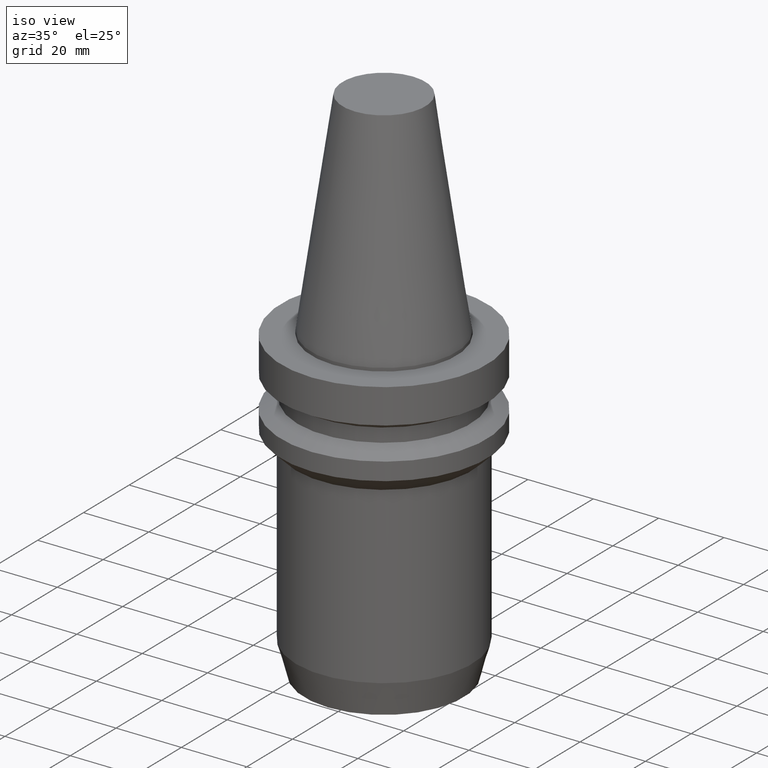
[diagram: clean part render]
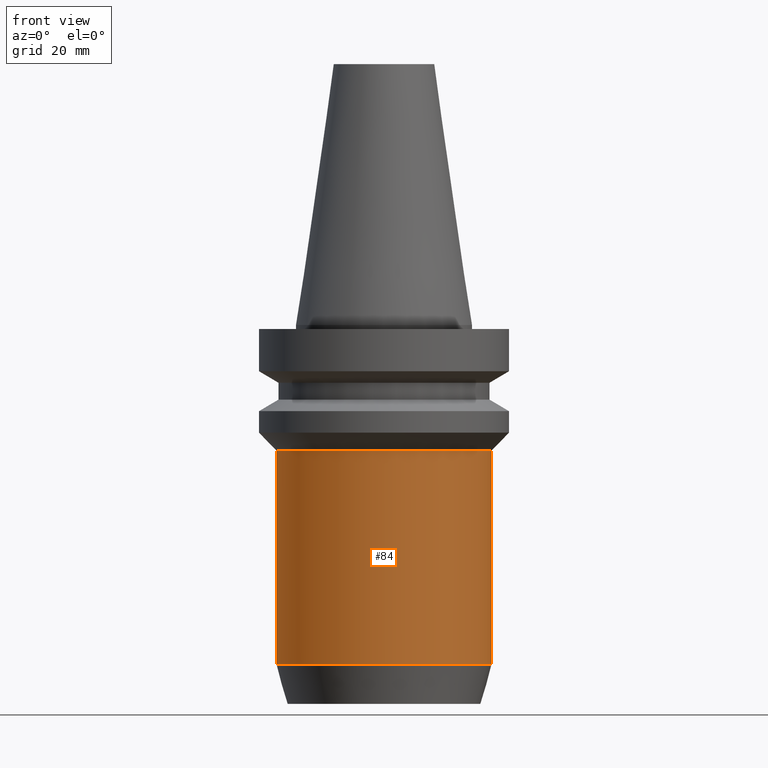
[diagram: tour spotlight — one face highlighted and labeled with its STEP entity id]
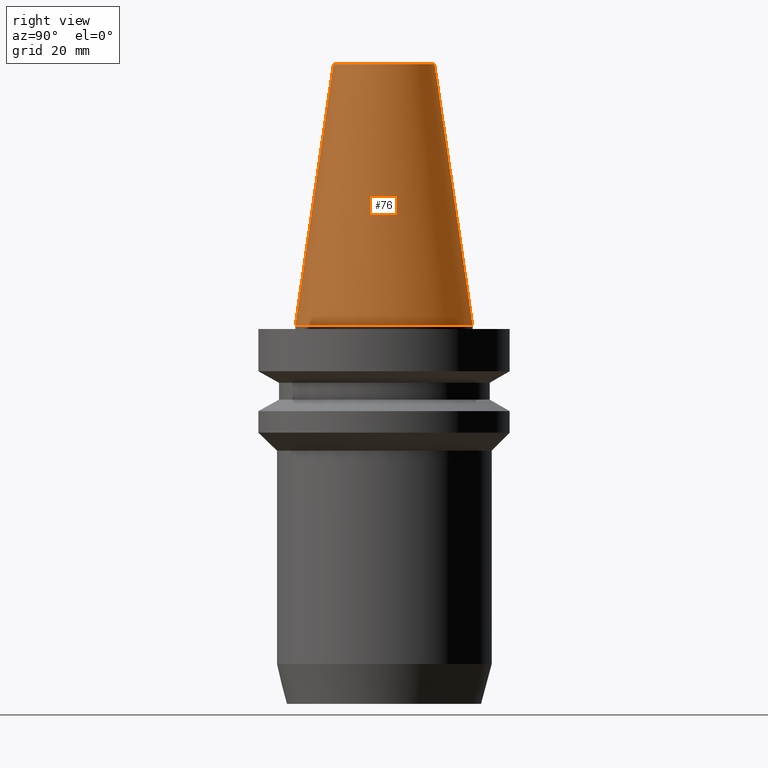
[diagram: tour spotlight — one face highlighted and labeled with its STEP entity id]
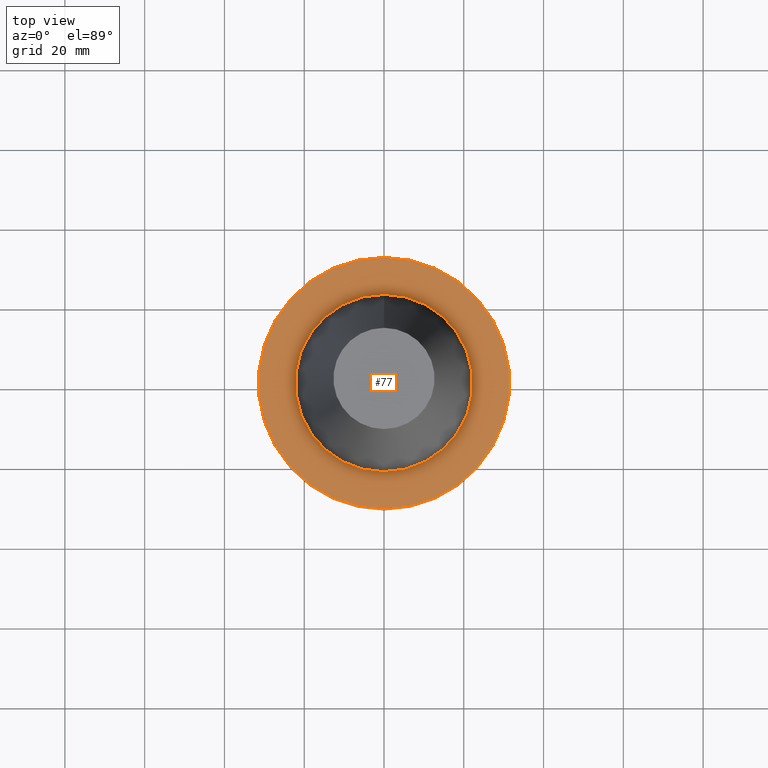
[diagram: tour spotlight — one face highlighted and labeled with its STEP entity id]
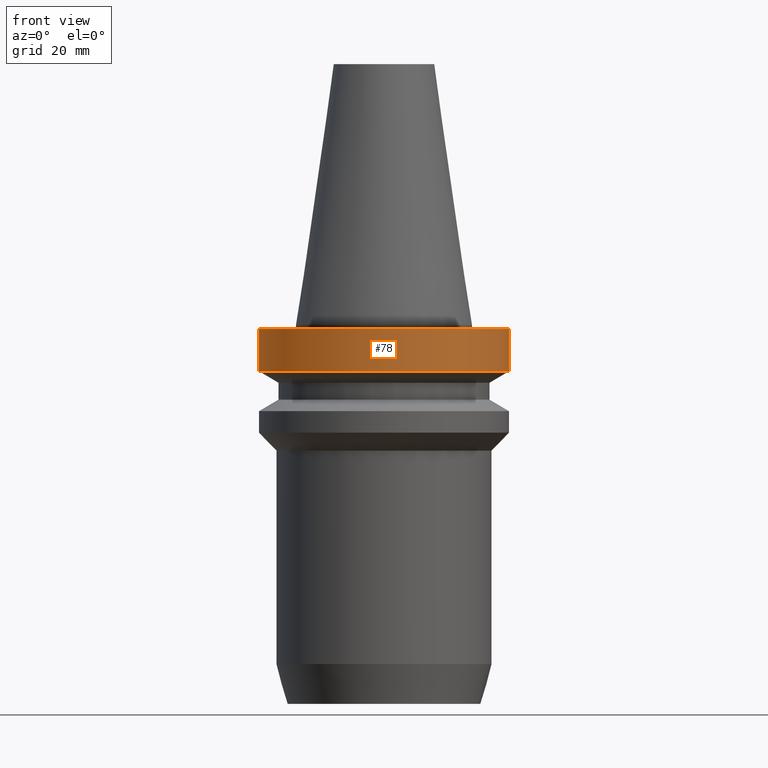
[diagram: tour spotlight — one face highlighted and labeled with its STEP entity id]
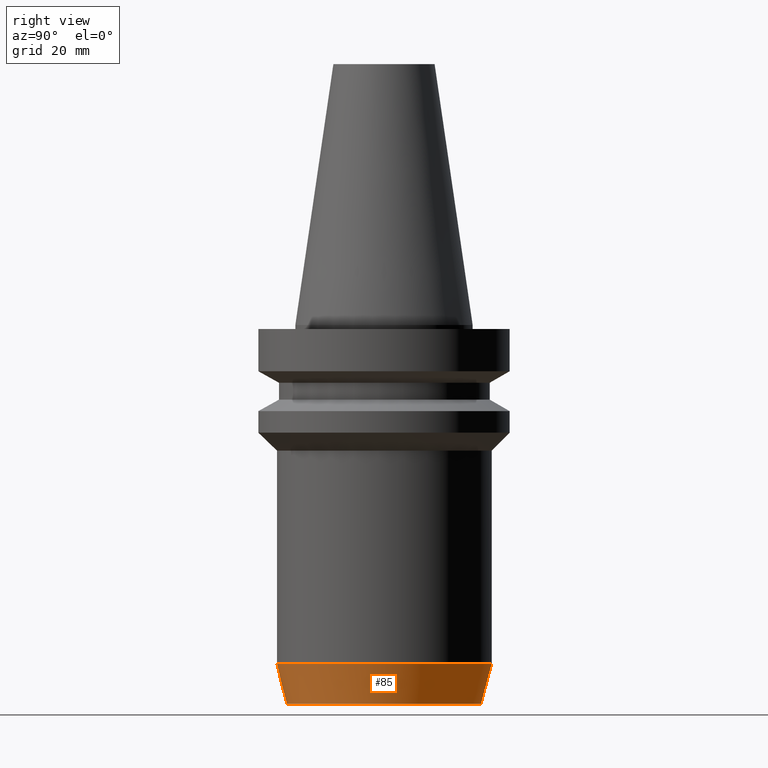
[diagram: tour spotlight — one face highlighted and labeled with its STEP entity id]
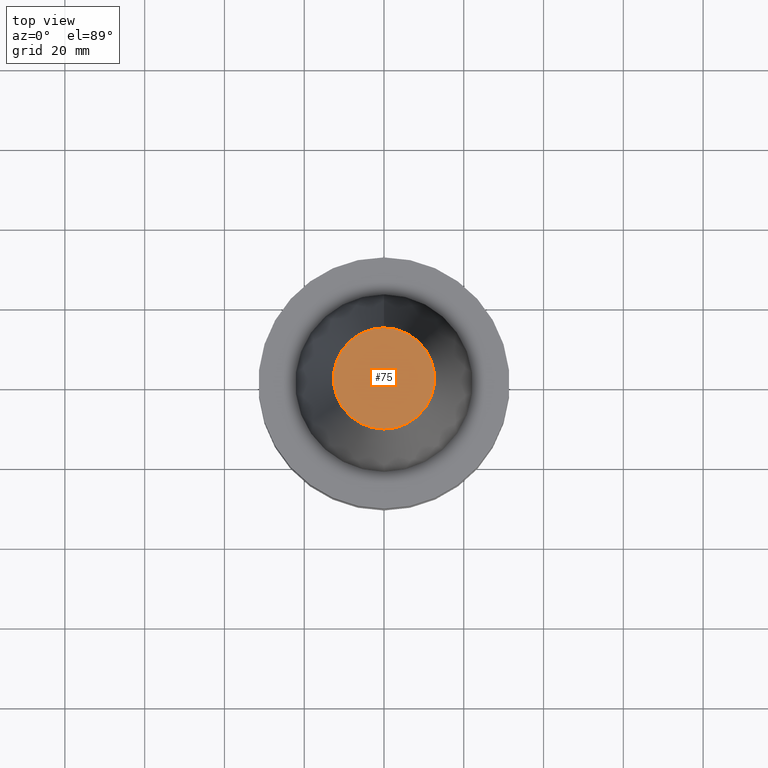
[diagram: tour spotlight — one face highlighted and labeled with its STEP entity id]
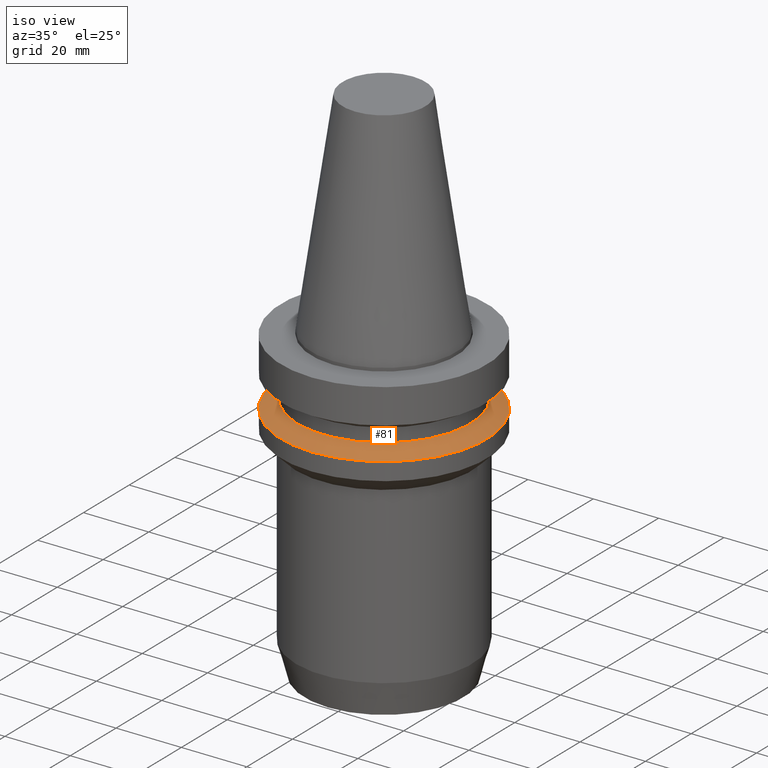
[diagram: tour spotlight — one face highlighted and labeled with its STEP entity id]
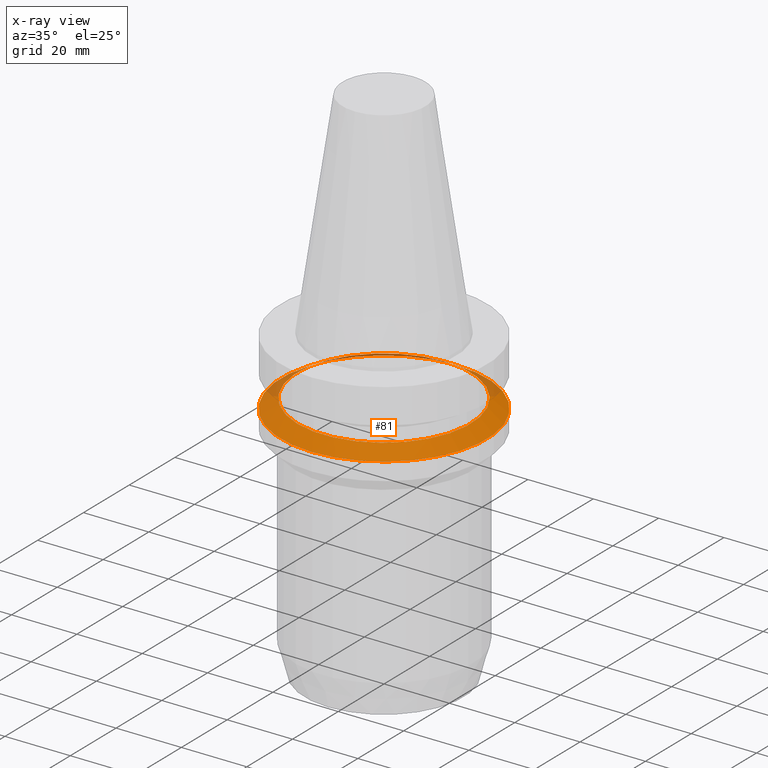
[diagram: x-ray of the same camera — body ghosted, this tour face saturated]
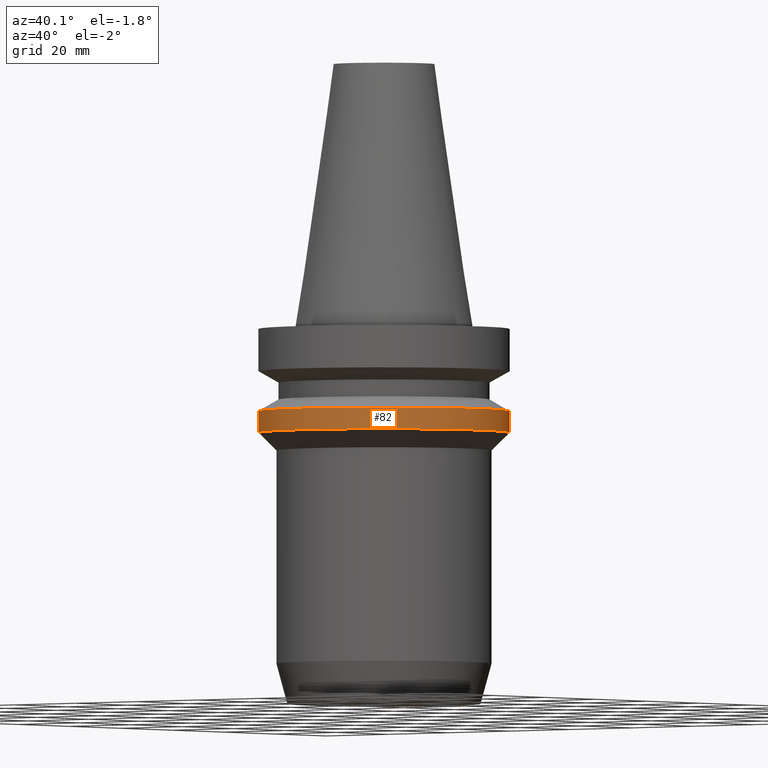
[diagram: tour spotlight — one face highlighted and labeled with its STEP entity id]
A machine part: a face-by-face anatomy tour. The part has 13 B-rep faces; the first image is the clean iso view, then the 8 largest visible faces are spotlighted one at a time (largest first), each with its STEP entity span.

Face 1 — front view, entity #84. In plain terms, the highlighted cylindrical surface (bore or boss wall) has radius 27 mm, axis along (-0, -0, 1).
Definition (entity closure, byte-faithful):
#84=ADVANCED_FACE('',(#115,#116),#117,.T.);
#115=FACE_BOUND('',#152,.T.);
#116=FACE_BOUND('',#153,.T.);
#117=CYLINDRICAL_SURFACE('',#154,27.0);
#152=EDGE_LOOP('',(#207));
#153=EDGE_LOOP('',(#208));
#154=AXIS2_PLACEMENT_3D('',#209,#210,#211);
#207=ORIENTED_EDGE('',*,*,#236,.F.);
#208=ORIENTED_EDGE('',*,*,#235,.T.);
#209=CARTESIAN_POINT('',(3.56678380184862E-015,7.13356760369725E-015,-58.24999998909));
#210=DIRECTION('',(-6.12323399573677E-017,-1.22464679914735E-016,1.0));
#211=DIRECTION('',(-1.23259516440783E-032,1.0,1.22464679914735E-016));
#235=EDGE_CURVE('',#256,#256,#257,.T.);
#236=EDGE_CURVE('',#258,#258,#259,.T.);
#256=VERTEX_POINT('',#280);
#257=CIRCLE('',#281,27.0);
#258=VERTEX_POINT('',#282);
#259=CIRCLE('',#283,27.0);
#280=CARTESIAN_POINT('',(1.92881870865708E-015,27.0,-31.5));
#281=AXIS2_PLACEMENT_3D('',#313,#314,#315);
#282=CARTESIAN_POINT('',(5.20474889504017E-015,27.0,-84.9999999781801));
#283=AXIS2_PLACEMENT_3D('',#316,#317,#318);
#313=CARTESIAN_POINT('',(1.92881870865708E-015,3.85763741731416E-015,-31.5));
#314=DIRECTION('',(6.12323399573677E-017,1.22464679914735E-016,-1.0));
#315=DIRECTION('',(-1.23259516440783E-032,1.0,1.22464679914735E-016));
#316=CARTESIAN_POINT('',(5.20474889504017E-015,1.04094977900803E-014,-84.9999999781801));
#317=DIRECTION('',(6.12323399573677E-017,1.22464679914735E-016,-1.0));
#318=DIRECTION('',(-1.23259516440783E-032,1.0,1.22464679914735E-016));

Face 2 — right view, entity #76. In plain terms, the highlighted conical surface has half-angle 8.297 deg.
Definition (entity closure, byte-faithful):
#76=ADVANCED_FACE('',(#91,#92),#93,.T.);
#91=FACE_BOUND('',#128,.T.);
#92=FACE_BOUND('',#129,.T.);
#93=CONICAL_SURFACE('',#130,17.4562500026599,0.144812498159292);
#128=EDGE_LOOP('',(#167));
#129=EDGE_LOOP('',(#168));
#130=AXIS2_PLACEMENT_3D('',#169,#170,#171);
#167=ORIENTED_EDGE('',*,*,#227,.F.);
#168=ORIENTED_EDGE('',*,*,#226,.T.);
#169=CARTESIAN_POINT('',(-2.00229751660592E-015,-4.00459503321184E-015,32.7));
#170=DIRECTION('',(6.12323399573677E-017,1.22464679914735E-016,-1.0));
#171=DIRECTION('',(-1.23259516440783E-032,1.0,1.22464679914735E-016));
#226=EDGE_CURVE('',#238,#238,#239,.T.);
#227=EDGE_CURVE('',#240,#240,#241,.T.);
#238=VERTEX_POINT('',#262);
#239=CIRCLE('',#263,12.6875000053197);
#240=VERTEX_POINT('',#264);
#241=CIRCLE('',#265,22.225);
#262=CARTESIAN_POINT('',(-4.00459503321185E-015,12.6875000053197,65.4));
#263=AXIS2_PLACEMENT_3D('',#286,#287,#288);
#264=CARTESIAN_POINT('',(-4.6376452915748E-031,22.225,5.82177751110499E-015));
#265=AXIS2_PLACEMENT_3D('',#289,#290,#291);
#286=CARTESIAN_POINT('',(-4.00459503321185E-015,-8.00919006642369E-015,65.4));
#287=DIRECTION('',(6.12323399573677E-017,1.22464679914735E-016,-1.0));
#288=DIRECTION('',(-1.23259516440783E-032,1.0,1.22464679914735E-016));
#289=CARTESIAN_POINT('',(-1.898172443945E-031,-3.79634488788999E-031,3.09995085157055E-015));
#290=DIRECTION('',(6.12323399573677E-017,1.22464679914735E-016,-1.0));
#291=DIRECTION('',(-1.23259516440783E-032,1.0,1.22464679914735E-016));

Face 3 — top view, entity #77. In plain terms, the highlighted planar face has unit normal (-0, -0, 1).
Definition (entity closure, byte-faithful):
#77=ADVANCED_FACE('',(#94,#95),#96,.T.);
#94=FACE_OUTER_BOUND('',#131,.T.);
#95=FACE_BOUND('',#132,.T.);
#96=PLANE('',#133);
#131=EDGE_LOOP('',(#172));
#132=EDGE_LOOP('',(#173));
#133=AXIS2_PLACEMENT_3D('',#174,#175,#176);
#172=ORIENTED_EDGE('',*,*,#228,.F.);
#173=ORIENTED_EDGE('',*,*,#229,.T.);
#174=CARTESIAN_POINT('',(6.12323399573673E-017,26.8625,-0.999999999999997));
#175=DIRECTION('',(-6.12323399573677E-017,-1.22464679914735E-016,1.0));
#176=DIRECTION('',(1.23259516440783E-032,-1.0,-1.22464679914735E-016));
#228=EDGE_CURVE('',#242,#242,#243,.T.);
#229=EDGE_CURVE('',#244,#244,#245,.T.);
#242=VERTEX_POINT('',#266);
#243=CIRCLE('',#267,31.5);
#244=VERTEX_POINT('',#268);
#245=CIRCLE('',#269,22.225);
#266=CARTESIAN_POINT('',(6.12323399573673E-017,31.5,-0.999999999999996));
#267=AXIS2_PLACEMENT_3D('',#292,#293,#294);
#268=CARTESIAN_POINT('',(6.12323399573674E-017,22.225,-0.999999999999997));
#269=AXIS2_PLACEMENT_3D('',#295,#296,#297);
#292=CARTESIAN_POINT('',(6.12323399573677E-017,1.22464679914735E-016,-1.0));
#293=DIRECTION('',(6.12323399573677E-017,1.22464679914735E-016,-1.0));
#294=DIRECTION('',(-1.23259516440783E-032,1.0,1.22464679914735E-016));
#295=CARTESIAN_POINT('',(6.12323399573677E-017,1.22464679914735E-016,-1.0));
#296=DIRECTION('',(6.12323399573677E-017,1.22464679914735E-016,-1.0));
#297=DIRECTION('',(-1.23259516440783E-032,1.0,1.22464679914735E-016));

Face 4 — front view, entity #78. In plain terms, the highlighted cylindrical surface (bore or boss wall) has radius 31.5 mm, axis along (-0, -0, 1).
Definition (entity closure, byte-faithful):
#78=ADVANCED_FACE('',(#97,#98),#99,.T.);
#97=FACE_BOUND('',#134,.T.);
#98=FACE_BOUND('',#135,.T.);
#99=CYLINDRICAL_SURFACE('',#136,31.5);
#134=EDGE_LOOP('',(#177));
#135=EDGE_LOOP('',(#178));
#136=AXIS2_PLACEMENT_3D('',#179,#180,#181);
#177=ORIENTED_EDGE('',*,*,#230,.F.);
#178=ORIENTED_EDGE('',*,*,#228,.T.);
#179=CARTESIAN_POINT('',(3.85763741731416E-016,7.71527483462832E-016,-6.3));
#180=DIRECTION('',(-6.12323399573677E-017,-1.22464679914735E-016,1.0));
#181=DIRECTION('',(-1.23259516440783E-032,1.0,1.22464679914735E-016));
#228=EDGE_CURVE('',#242,#242,#243,.T.);
#230=EDGE_CURVE('',#246,#246,#247,.T.);
#242=VERTEX_POINT('',#266);
#243=CIRCLE('',#267,31.5);
#246=VERTEX_POINT('',#270);
#247=CIRCLE('',#271,31.5);
#266=CARTESIAN_POINT('',(6.12323399573673E-017,31.5,-0.999999999999996));
#267=AXIS2_PLACEMENT_3D('',#292,#293,#294);
#270=CARTESIAN_POINT('',(7.10295143505464E-016,31.5,-11.6));
#271=AXIS2_PLACEMENT_3D('',#298,#299,#300);
#292=CARTESIAN_POINT('',(6.12323399573677E-017,1.22464679914735E-016,-1.0));
#293=DIRECTION('',(6.12323399573677E-017,1.22464679914735E-016,-1.0));
#294=DIRECTION('',(-1.23259516440783E-032,1.0,1.22464679914735E-016));
#298=CARTESIAN_POINT('',(7.10295143505465E-016,1.42059028701093E-015,-11.6));
#299=DIRECTION('',(6.12323399573677E-017,1.22464679914735E-016,-1.0));
#300=DIRECTION('',(-1.23259516440783E-032,1.0,1.22464679914735E-016));

Face 5 — right view, entity #85. In plain terms, the highlighted conical surface has half-angle 15 deg.
Definition (entity closure, byte-faithful):
#85=ADVANCED_FACE('',(#118,#119),#120,.T.);
#118=FACE_BOUND('',#155,.T.);
#119=FACE_BOUND('',#156,.T.);
#120=CONICAL_SURFACE('',#157,25.6602540369655,0.261799387417658);
#155=EDGE_LOOP('',(#212));
#156=EDGE_LOOP('',(#213));
#157=AXIS2_PLACEMENT_3D('',#214,#215,#216);
#212=ORIENTED_EDGE('',*,*,#237,.F.);
#213=ORIENTED_EDGE('',*,*,#236,.T.);
#214=CARTESIAN_POINT('',(5.51091059549505E-015,1.10218211909901E-014,-89.99999998909));
#215=DIRECTION('',(-6.12323399573677E-017,-1.22464679914735E-016,1.0));
#216=DIRECTION('',(-1.23259516440783E-032,1.0,1.22464679914735E-016));
#236=EDGE_CURVE('',#258,#258,#259,.T.);
#237=EDGE_CURVE('',#260,#260,#261,.T.);
#258=VERTEX_POINT('',#282);
#259=CIRCLE('',#283,27.0);
#260=VERTEX_POINT('',#284);
#261=CIRCLE('',#285,24.320508073931);
#282=CARTESIAN_POINT('',(5.20474889504017E-015,27.0,-84.9999999781801));
#283=AXIS2_PLACEMENT_3D('',#316,#317,#318);
#284=CARTESIAN_POINT('',(5.81707229594993E-015,24.320508073931,-95.0));
#285=AXIS2_PLACEMENT_3D('',#319,#320,#321);
#316=CARTESIAN_POINT('',(5.20474889504017E-015,1.04094977900803E-014,-84.9999999781801));
#317=DIRECTION('',(6.12323399573677E-017,1.22464679914735E-016,-1.0));
#318=DIRECTION('',(-1.23259516440783E-032,1.0,1.22464679914735E-016));
#319=CARTESIAN_POINT('',(5.81707229594993E-015,1.16341445918999E-014,-95.0));
#320=DIRECTION('',(6.12323399573677E-017,1.22464679914735E-016,-1.0));
#321=DIRECTION('',(-1.23259516440783E-032,1.0,1.22464679914735E-016));

Face 6 — top view, entity #75. In plain terms, the highlighted planar face has unit normal (-0, -0, 1).
Definition (entity closure, byte-faithful):
#75=ADVANCED_FACE('',(#89),#90,.T.);
#89=FACE_OUTER_BOUND('',#126,.T.);
#90=PLANE('',#127);
#126=EDGE_LOOP('',(#163));
#127=AXIS2_PLACEMENT_3D('',#164,#165,#166);
#163=ORIENTED_EDGE('',*,*,#226,.F.);
#164=CARTESIAN_POINT('',(-4.00459503321185E-015,6.34375000265984,65.4));
#165=DIRECTION('',(-6.12323399573677E-017,-1.22464679914735E-016,1.0));
#166=DIRECTION('',(1.23259516440783E-032,-1.0,-1.22464679914735E-016));
#226=EDGE_CURVE('',#238,#238,#239,.T.);
#238=VERTEX_POINT('',#262);
#239=CIRCLE('',#263,12.6875000053197);
#262=CARTESIAN_POINT('',(-4.00459503321185E-015,12.6875000053197,65.4));
#263=AXIS2_PLACEMENT_3D('',#286,#287,#288);
#286=CARTESIAN_POINT('',(-4.00459503321185E-015,-8.00919006642369E-015,65.4));
#287=DIRECTION('',(6.12323399573677E-017,1.22464679914735E-016,-1.0));
#288=DIRECTION('',(-1.23259516440783E-032,1.0,1.22464679914735E-016));

Face 7 — iso view, entity #81. An x-ray twin of the same camera follows (body ghosted, this face saturated) — the face is partly hidden behind the body. In plain terms, the highlighted conical surface has half-angle 60 deg.
Definition (entity closure, byte-faithful):
#81=ADVANCED_FACE('',(#106,#107),#108,.T.);
#106=FACE_BOUND('',#143,.T.);
#107=FACE_BOUND('',#144,.T.);
#108=CONICAL_SURFACE('',#145,29.0,1.04719755058882);
#143=EDGE_LOOP('',(#192));
#144=EDGE_LOOP('',(#193));
#145=AXIS2_PLACEMENT_3D('',#194,#195,#196);
#192=ORIENTED_EDGE('',*,*,#233,.F.);
#193=ORIENTED_EDGE('',*,*,#232,.T.);
#194=CARTESIAN_POINT('',(1.23423727306135E-015,2.46847454612269E-015,-20.156624325));
#195=DIRECTION('',(6.12323399573677E-017,1.22464679914735E-016,-1.0));
#196=DIRECTION('',(-1.23259516440783E-032,1.0,1.22464679914735E-016));
#232=EDGE_CURVE('',#250,#250,#251,.T.);
#233=EDGE_CURVE('',#252,#252,#253,.T.);
#250=VERTEX_POINT('',#274);
#251=CIRCLE('',#275,26.5);
#252=VERTEX_POINT('',#276);
#253=CIRCLE('',#277,31.5);
#274=CARTESIAN_POINT('',(1.14585600304355E-015,26.5,-18.71324865));
#275=AXIS2_PLACEMENT_3D('',#304,#305,#306);
#276=CARTESIAN_POINT('',(1.32261854307914E-015,31.5,-21.6));
#277=AXIS2_PLACEMENT_3D('',#307,#308,#309);
#304=CARTESIAN_POINT('',(1.14585600304355E-015,2.2917120060871E-015,-18.71324865));
#305=DIRECTION('',(6.12323399573677E-017,1.22464679914735E-016,-1.0));
#306=DIRECTION('',(-1.23259516440783E-032,1.0,1.22464679914735E-016));
#307=CARTESIAN_POINT('',(1.32261854307914E-015,2.64523708615828E-015,-21.6));
#308=DIRECTION('',(6.12323399573677E-017,1.22464679914735E-016,-1.0));
#309=DIRECTION('',(-1.23259516440783E-032,1.0,1.22464679914735E-016));

Face 8 — auxiliary view, entity #82. In plain terms, the highlighted cylindrical surface (bore or boss wall) has radius 31.5 mm, axis along (-0, -0, 1).
Definition (entity closure, byte-faithful):
#82=ADVANCED_FACE('',(#109,#110),#111,.T.);
#109=FACE_BOUND('',#146,.T.);
#110=FACE_BOUND('',#147,.T.);
#111=CYLINDRICAL_SURFACE('',#148,31.5);
#146=EDGE_LOOP('',(#197));
#147=EDGE_LOOP('',(#198));
#148=AXIS2_PLACEMENT_3D('',#199,#200,#201);
#197=ORIENTED_EDGE('',*,*,#234,.F.);
#198=ORIENTED_EDGE('',*,*,#233,.T.);
#199=CARTESIAN_POINT('',(1.48794586096403E-015,2.97589172192807E-015,-24.3));
#200=DIRECTION('',(-6.12323399573677E-017,-1.22464679914735E-016,1.0));
#201=DIRECTION('',(-1.23259516440783E-032,1.0,1.22464679914735E-016));
#233=EDGE_CURVE('',#252,#252,#253,.T.);
#234=EDGE_CURVE('',#254,#254,#255,.T.);
#252=VERTEX_POINT('',#276);
#253=CIRCLE('',#277,31.5);
#254=VERTEX_POINT('',#278);
#255=CIRCLE('',#279,31.5);
#276=CARTESIAN_POINT('',(1.32261854307914E-015,31.5,-21.6));
#277=AXIS2_PLACEMENT_3D('',#307,#308,#309);
#278=CARTESIAN_POINT('',(1.65327317884893E-015,31.5,-27.0));
#279=AXIS2_PLACEMENT_3D('',#310,#311,#312);
#307=CARTESIAN_POINT('',(1.32261854307914E-015,2.64523708615828E-015,-21.6));
#308=DIRECTION('',(6.12323399573677E-017,1.22464679914735E-016,-1.0));
#309=DIRECTION('',(-1.23259516440783E-032,1.0,1.22464679914735E-016));
#310=CARTESIAN_POINT('',(1.65327317884893E-015,3.30654635769785E-015,-27.0));
#311=DIRECTION('',(6.12323399573677E-017,1.22464679914735E-016,-1.0));
#312=DIRECTION('',(-1.23259516440783E-032,1.0,1.22464679914735E-016));